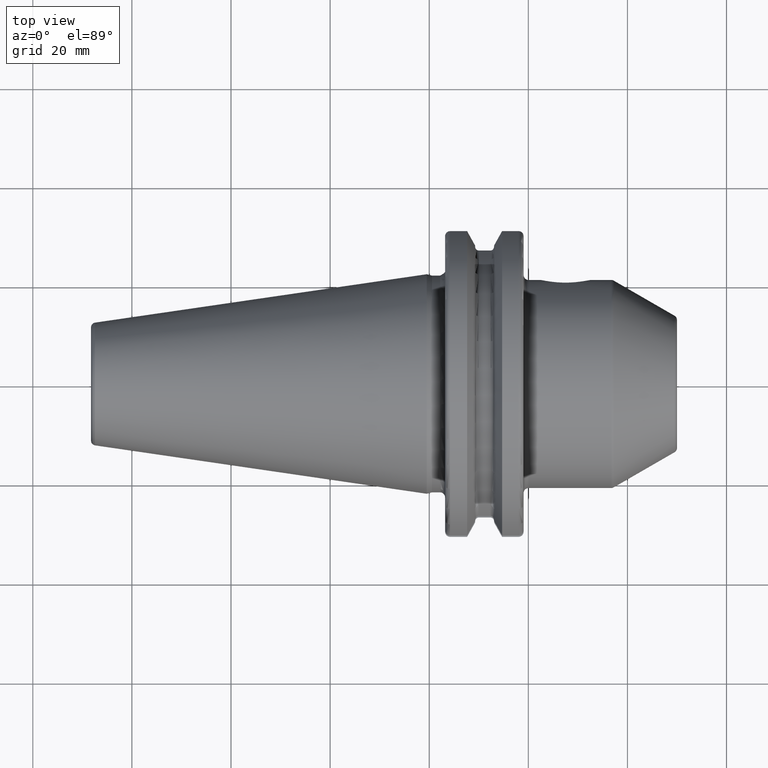
[diagram: clean part render]
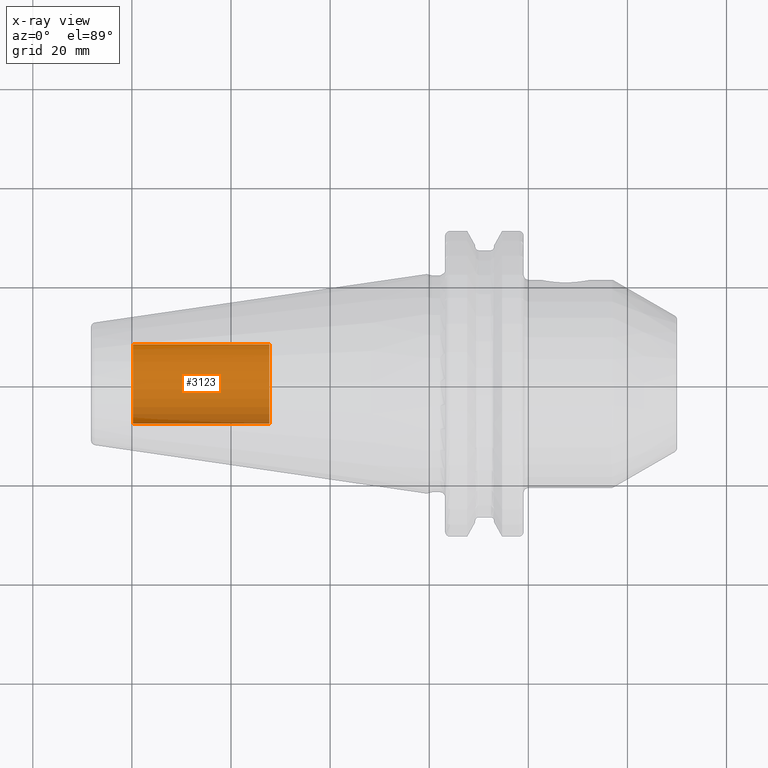
[diagram: x-ray — body ghosted, one internal face saturated and labeled with its STEP entity id]
A machine part, top view, then the same camera in x-ray: the body is ghosted and one INTERNAL B-rep face — a face not visible from any outside direction — is saturated and labeled: STEP entity #3123.
In plain terms, the highlighted cylindrical surface (partial cylindrical patch) has radius 8.0028 mm, axis along (1, 0, 0).
Its self-contained STEP definition (entity closure, byte-faithful):
#3058=CARTESIAN_POINT('',(-5.98E1,0.E0,0.E0));
#3059=DIRECTION('',(-1.E0,0.E0,0.E0));
#3060=DIRECTION('',(0.E0,1.E0,0.E0));
#3061=AXIS2_PLACEMENT_3D('',#3058,#3059,#3060);
#3063=DIRECTION('',(1.E0,0.E0,0.E0));
#3064=VECTOR('',#3063,2.755E1);
#3065=CARTESIAN_POINT('',(-5.98E1,-8.00275E0,0.E0));
#3066=LINE('',#3065,#3064);
#3072=DIRECTION('',(1.E0,0.E0,0.E0));
#3073=VECTOR('',#3072,2.755E1);
#3074=CARTESIAN_POINT('',(-5.98E1,8.00275E0,0.E0));
#3075=LINE('',#3074,#3073);
#3081=CARTESIAN_POINT('',(-3.225E1,0.E0,0.E0));
#3082=DIRECTION('',(1.E0,0.E0,0.E0));
#3083=DIRECTION('',(0.E0,-1.E0,0.E0));
#3084=AXIS2_PLACEMENT_3D('',#3081,#3082,#3083);
#3096=CARTESIAN_POINT('',(-5.98E1,8.00275E0,0.E0));
#3097=CARTESIAN_POINT('',(-5.98E1,-8.00275E0,0.E0));
#3098=VERTEX_POINT('',#3096);
#3099=VERTEX_POINT('',#3097);
#3100=CARTESIAN_POINT('',(-3.225E1,8.00275E0,0.E0));
#3101=CARTESIAN_POINT('',(-3.225E1,-8.00275E0,0.E0));
#3102=VERTEX_POINT('',#3100);
#3103=VERTEX_POINT('',#3101);
#3108=CARTESIAN_POINT('',(-5.98E1,0.E0,0.E0));
#3109=DIRECTION('',(1.E0,0.E0,0.E0));
#3110=DIRECTION('',(0.E0,1.E0,0.E0));
#3111=AXIS2_PLACEMENT_3D('',#3108,#3109,#3110);
#3112=CYLINDRICAL_SURFACE('',#3111,8.00275E0);
#3114=ORIENTED_EDGE('',*,*,#3113,.T.);
#3116=ORIENTED_EDGE('',*,*,#3115,.T.);
#3118=ORIENTED_EDGE('',*,*,#3117,.T.);
#3120=ORIENTED_EDGE('',*,*,#3119,.F.);
#3121=EDGE_LOOP('',(#3114,#3116,#3118,#3120));
#3122=FACE_OUTER_BOUND('',#3121,.F.);
#3123=ADVANCED_FACE('',(#3122),#3112,.T.);
#3062=CIRCLE('',#3061,8.00275E0);
#3085=CIRCLE('',#3084,8.00275E0);
#3113=EDGE_CURVE('',#3098,#3099,#3062,.T.);
#3115=EDGE_CURVE('',#3099,#3103,#3066,.T.);
#3117=EDGE_CURVE('',#3103,#3102,#3085,.T.);
#3119=EDGE_CURVE('',#3098,#3102,#3075,.T.);